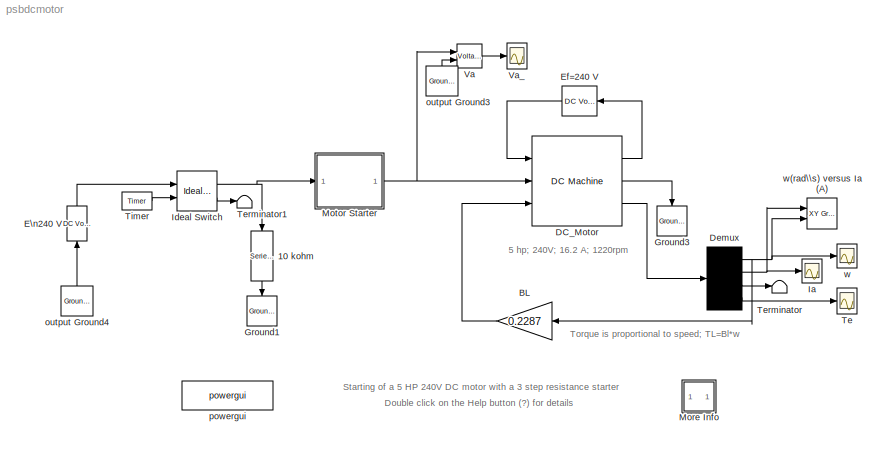
MODEL psbdcmotor
KIND model
BLOCK [Reference] 10 kohm  REF=powerlib2/Elements/Series RLC Branch
  PSBOutputType = 1
  Ports = [1, 1]
  SourceBlock = powerlib2/Elements/Series RLC Branch
  SourceType = Series RLC Branch
  Tag = PoWeRsYsTeMbLoCk
  a = 1e4
  b = 0
  c = inf
  mesure = None
BLOCK [Gain] BL
  Gain = 0.2287
BLOCK [Reference] DC_Motor  REF=powerlib2/Machines/DC Machine
  Bm = 0
  J = 1
  Laf = 1.8
  PSBOutputType = 110
  Ports = [3, 3]
  RLa = [ 0.6  0.012]
  RLf = [ 240  120]
  SourceBlock = powerlib2/Machines/DC Machine
  SourceType = DC machine
  Tf = 0
  w0 = 1
BLOCK [Demux] Demux
  Ports = [1, 4]
BLOCK [Reference] E\n240 V  REF=powerlib2/Electrical\nSources/DC Voltage Source
  PSBOutputType = 1
  Ports = [1, 1]
  SourceBlock = powerlib2/Electrical\nSources/DC Voltage Source
  SourceType = DC Voltage Source
  Tag = PoWeRsYsTeMbLoCk
  V = 240
  mesure = None
BLOCK [Reference] Ef=240 V  REF=powerlib2/Electrical\nSources/DC Voltage Source
  PSBOutputType = 1
  Ports = [1, 1]
  SourceBlock = powerlib2/Electrical\nSources/DC Voltage Source
  SourceType = DC Voltage Source
  Tag = PoWeRsYsTeMbLoCk
  V = 240
  mesure = None
BLOCK [Reference] Ground1  REF=powerlib2/Connectors/Ground (input)
  Ports = [1]
  SourceBlock = powerlib2/Connectors/Ground (input)
  SourceType = Ground
  Tag = PoWeRsYsTeMbLoCk
BLOCK [Reference] Ground3  REF=powerlib2/Connectors/Ground (input)
  Ports = [1]
  SourceBlock = powerlib2/Connectors/Ground (input)
  SourceType = Ground
  Tag = PoWeRsYsTeMbLoCk
BLOCK [Scope] Ia
  DataFormat = Array
  LimitDataPoints = off
  MaxDataPoints = 500000
  NumInputPorts = 1
  Ports = [1]
  SaveName = Ia
  SaveToWorkspace = on
  TickLabels = on
  TimeRange = 10
  YMax = 40
  YMin = 0
  ZoomMode = xonly
BLOCK [Reference] Ideal Switch  REF=powerlib2/Power\nElectronics/Ideal Switch
  Cs = 0
  IC = 0
  Lon = 10e-6
  PSBOutputType = 10
  Ports = [2, 2]
  Ron = 1e-4
  Rs = inf
  SourceBlock = powerlib2/Power\nElectronics/Ideal Switch
  SourceType = Ideal Switch
  Tag = PoWeRsYsTeMbLoCk
BLOCK [SubSystem] More Info
  MaskDisplay = disp('?')
  MaskIconFrame = on
  MaskIconOpaque = on
  MaskIconRotate = none
  MaskIconUnits = autoscale
  MinAlgLoopOccurrences = off
  Ports = []
  RTWSystemCode = Auto
  TreatAsAtomicUnit = off
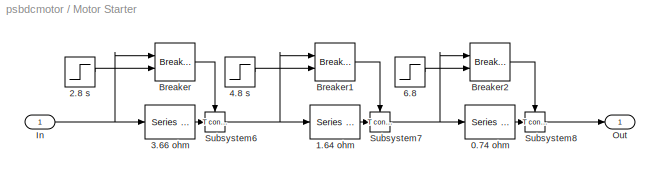
BLOCK [SubSystem] Motor Starter
  MaskDisplay = disp('3 step\\n\\nstarter')
  MaskIconFrame = on
  MaskIconOpaque = off
  MaskIconRotate = none
  MaskIconUnits = autoscale
  MinAlgLoopOccurrences = off
  Ports = [1, 1]
  RTWSystemCode = Auto
  TreatAsAtomicUnit = off
BLOCK [Reference] Motor Starter/0.74 ohm  REF=powerlib2/Elements/Series RLC Branch
  PSBOutputType = 1
  Ports = [1, 1]
  SourceBlock = powerlib2/Elements/Series RLC Branch
  SourceType = Series RLC Branch
  Tag = PoWeRsYsTeMbLoCk
  a = 0.74
  b = 0
  c = inf
  mesure = None
BLOCK [Reference] Motor Starter/1.64  ohm  REF=powerlib2/Elements/Series RLC Branch
  PSBOutputType = 1
  Ports = [1, 1]
  SourceBlock = powerlib2/Elements/Series RLC Branch
  SourceType = Series RLC Branch
  Tag = PoWeRsYsTeMbLoCk
  a = 1.64
  b = 0
  c = inf
  mesure = None
BLOCK [Step] Motor Starter/2.8 s
  SampleTime = 0
  Time = 2.8
  ZeroCross = off
BLOCK [Reference] Motor Starter/3.66 ohm  REF=powerlib2/Elements/Series RLC Branch
  PSBOutputType = 1
  Ports = [1, 1]
  SourceBlock = powerlib2/Elements/Series RLC Branch
  SourceType = Series RLC Branch
  Tag = PoWeRsYsTeMbLoCk
  a = 3.66
  b = 0
  c = inf
  mesure = None
BLOCK [Step] Motor Starter/4.8 s
  SampleTime = 0
  Time = 4.8
  ZeroCross = off
BLOCK [Step] Motor Starter/6.8
  SampleTime = 0
  Time = 6.8
  ZeroCross = off
BLOCK [Reference] Motor Starter/Breaker  REF=powerlib2/Elements/Breaker
  PSBOutputType = 1
  Ports = [2, 1]
  SourceBlock = powerlib2/Elements/Breaker
  SourceType = Breaker
  Tag = PoWeRsYsTeMbLoCk
  Ts = 0
  a = 0.01
  c = 0
  comext = on
  cs = 0
  mesure = None
  rs = inf
  times = [ 4/60  5/60 ]
BLOCK [Reference] Motor Starter/Breaker1  REF=powerlib2/Elements/Breaker
  PSBOutputType = 1
  Ports = [2, 1]
  SourceBlock = powerlib2/Elements/Breaker
  SourceType = Breaker
  Tag = PoWeRsYsTeMbLoCk
  Ts = 0
  a = 0.01
  c = 0
  comext = on
  cs = 0
  mesure = None
  rs = inf
  times = [ 4/60  5/60 ]
BLOCK [Reference] Motor Starter/Breaker2  REF=powerlib2/Elements/Breaker
  PSBOutputType = 1
  Ports = [2, 1]
  SourceBlock = powerlib2/Elements/Breaker
  SourceType = Breaker
  Tag = PoWeRsYsTeMbLoCk
  Ts = 0
  a = 0.01
  c = 0
  comext = on
  cs = 0
  mesure = None
  rs = inf
  times = [ 4/60  5/60 ]
BLOCK [Inport] Motor Starter/In
  IconDisplay = Port number
  LatchInput = off
  Port = 1
BLOCK [Outport] Motor Starter/Out
  BusOutputAsStruct = off
  IconDisplay = Port number
  InitialOutput = 0
BLOCK [Reference] Motor Starter/Subsystem6  REF=powerlib2/Connectors/T connector
  PSBOutputType = 1
  Ports = [1, 1, 1]
  SourceBlock = powerlib2/Connectors/T connector
  SourceType = Bus Bar
  Tag = PoWeRsYsTeMbLoCk
BLOCK [Reference] Motor Starter/Subsystem7  REF=powerlib2/Connectors/T connector
  PSBOutputType = 1
  Ports = [1, 1, 1]
  SourceBlock = powerlib2/Connectors/T connector
  SourceType = Bus Bar
  Tag = PoWeRsYsTeMbLoCk
BLOCK [Reference] Motor Starter/Subsystem8  REF=powerlib2/Connectors/T connector
  PSBOutputType = 1
  Ports = [1, 1, 1]
  SourceBlock = powerlib2/Connectors/T connector
  SourceType = Bus Bar
  Tag = PoWeRsYsTeMbLoCk
BLOCK [Scope] Te
  DataFormat = Array
  LimitDataPoints = off
  MaxDataPoints = 500000
  NumInputPorts = 1
  Ports = [1]
  SaveName = Tm
  SaveToWorkspace = on
  TickLabels = on
  TimeRange = 10
  YMax = 100
  YMin = 0
  ZoomMode = xonly
BLOCK [Terminator] Terminator
BLOCK [Terminator] Terminator1
BLOCK [Reference] Timer  REF=powerlib_extras/Control \nBlocks/Timer
  Ports = [0, 1]
  SourceBlock = powerlib_extras/Control \nBlocks/Timer
  SourceType = Timer
  e = [0 1 ]
  t = [0 0.5 ]
BLOCK [Reference] Va  REF=powerlib2/Measurements/Voltage Measurement
  OutputType = Magnitude
  PSBOutputType = 0
  PSBequivalent = 0
  PhasorSimulation = off
  Ports = [2, 1]
  SourceBlock = powerlib2/Measurements/Voltage Measurement
  SourceType = Voltage Measurement
  Tag = PoWeRsYsTeMmEaSuReMeNt
BLOCK [Scope] Va_
  DataFormat = Array
  LimitDataPoints = off
  MaxDataPoints = 500000
  NumInputPorts = 1
  Ports = [1]
  SaveName = U_DC_mot
  SaveToWorkspace = on
  TickLabels = on
  TimeRange = 10
  YMax = 300
  YMin = 0
  ZoomMode = xonly
BLOCK [Reference] output Ground3  REF=powerlib2/Connectors/Ground (output)
  PSBOutputType = 1
  Ports = [0, 1]
  SourceBlock = powerlib2/Connectors/Ground (output)
  SourceType = Ground
  Tag = PoWeRsYsTeMbLoCk
BLOCK [Reference] output Ground4  REF=powerlib2/Connectors/Ground (output)
  PSBOutputType = 1
  Ports = [0, 1]
  SourceBlock = powerlib2/Connectors/Ground (output)
  SourceType = Ground
  Tag = PoWeRsYsTeMbLoCk
BLOCK [Reference] powergui  REF=powerlib2/powergui
  DisplayStyle = off
  Frange = logspace(0,3,50)
  FreqAxis = off
  MaxFrequency = 1000
  Ports = []
  RmsSteady = 1
  SourceBlock = powerlib2/powergui
  SourceType = PSB option menu block
  StartTime = 0.0
  Ts = 0
  Xlog = off
  Ylog = off
  ZoomFFT = on
  cycles = 1
  display = off
  echomessages = off
  frequency = 60
  frequencyindice = 1
  frequencyindicesteady = 1
  fundamental = 60
  methode = off
  save = off
  variable = ZData
BLOCK [Scope] w
  DataFormat = Array
  LimitDataPoints = off
  MaxDataPoints = 500000
  NumInputPorts = 1
  Ports = [1]
  SaveName = w
  SaveToWorkspace = on
  TickLabels = on
  TimeRange = 10
  YMax = 150
  YMin = 0
BLOCK [Reference] w(rad\\s) versus Ia (A)  REF=simulink/Sinks/XY Graph
  Ports = [2]
  SourceBlock = simulink/Sinks/XY Graph
  SourceType = XY scope.
  st = -1
  xmax = 40
  xmin = 0
  ymax = 140
  ymin = 0
ANNOTATION (root): 5 hp; 240V; 16.2 A; 1220rpm
ANNOTATION (root): Double click on the Help button (?) for details
ANNOTATION (root): Starting of a 5 HP 240V DC motor with a 3 step resistance starter
ANNOTATION (root): Torque is proportional to speed; TL=Bl*w
ANNOTATION More Info: (Krause et al., Reference Analysis of Electric Machinery, pp 89-92)
ANNOTATION More Info: DC Motor Rated Values:
ANNOTATION More Info: G. Sybille (Hydro-Quebec)
ANNOTATION More Info: Induced EMF: Eo-=240-16.2*0.6=230.3 V\n\nPe = 230.3*16.2=3731 W = 5.0 HP\n\nField current: If = 240/240 =1 A\n\nEo = w*Laf*If ---> w = (Eo/La*If) \nspeed w = 230.3/1.8 = 127.7 rad/s = 1220 r/min \n\nNominal torque: Te = Pe/w = 3731/127.7 = 29.2 N.m
ANNOTATION More Info: Starting a 5 HP, 240V DC motor with a 3-step resistance starter
LINE 10 kohm:1 -> Ground1:1
LINE BL:1 -> DC_Motor:3
LINE DC_Motor:1 -> Ef=240 V:1
LINE DC_Motor:2 -> Ground3:1
LINE DC_Motor:3 -> Demux:1
NET Demux:1 -> BL:1, w(rad\\s) versus Ia (A):2, w:1
NET Demux:2 -> Ia:1, w(rad\\s) versus Ia (A):1
LINE Demux:3 -> Terminator:1
LINE Demux:4 -> Te:1
LINE E\n240 V:1 -> Ideal Switch:1
LINE Ef=240 V:1 -> DC_Motor:1
NET Ideal Switch:1 -> 10 kohm:1, Motor Starter:1
LINE Ideal Switch:2 -> Terminator1:1
LINE Motor Starter/0.74 ohm:1 -> Motor Starter/Subsystem8:1
LINE Motor Starter/1.64  ohm:1 -> Motor Starter/Subsystem7:1
LINE Motor Starter/2.8 s:1 -> Motor Starter/Breaker:2
LINE Motor Starter/3.66 ohm:1 -> Motor Starter/Subsystem6:1
LINE Motor Starter/4.8 s:1 -> Motor Starter/Breaker1:2
LINE Motor Starter/6.8:1 -> Motor Starter/Breaker2:2
LINE Motor Starter/Breaker1:1 -> Motor Starter/Subsystem7:enable
LINE Motor Starter/Breaker2:1 -> Motor Starter/Subsystem8:enable
LINE Motor Starter/Breaker:1 -> Motor Starter/Subsystem6:enable
NET Motor Starter/In:1 -> Motor Starter/3.66 ohm:1, Motor Starter/Breaker:1
NET Motor Starter/Subsystem6:1 -> Motor Starter/1.64  ohm:1, Motor Starter/Breaker1:1
NET Motor Starter/Subsystem7:1 -> Motor Starter/0.74 ohm:1, Motor Starter/Breaker2:1
LINE Motor Starter/Subsystem8:1 -> Motor Starter/Out:1
NET Motor Starter:1 -> DC_Motor:2, Va:1
LINE Timer:1 -> Ideal Switch:2
LINE Va:1 -> Va_:1
LINE output Ground3:1 -> Va:2
LINE output Ground4:1 -> E\n240 V:1
note: NET lines group one-source signal fan-out (src -> all destinations, sorted); 1:1 wires keep LINE
